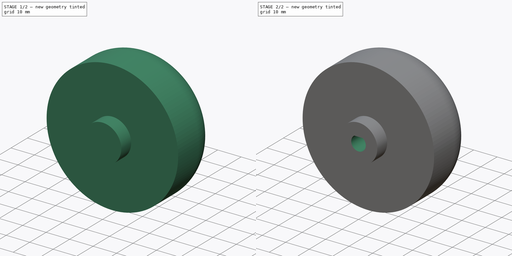
[diagram: build sequence overview — one tinted view per stage of 2, left to right]
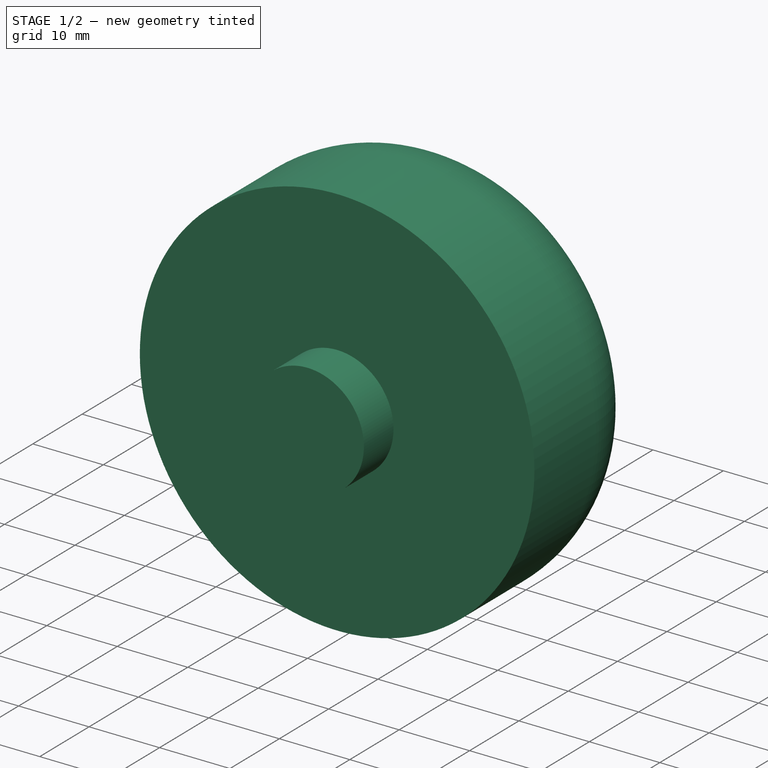
[diagram: stage 1 of 2 — iso view after this stage's code; geometry added in this stage tinted green]
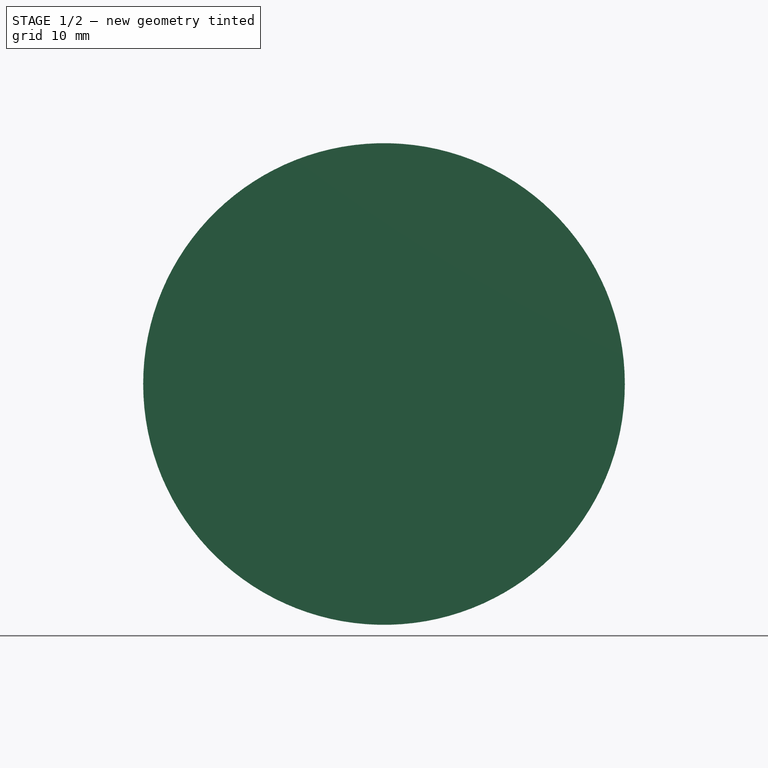
[diagram: stage 1 of 2 — front view after this stage's code; geometry added in this stage tinted green]
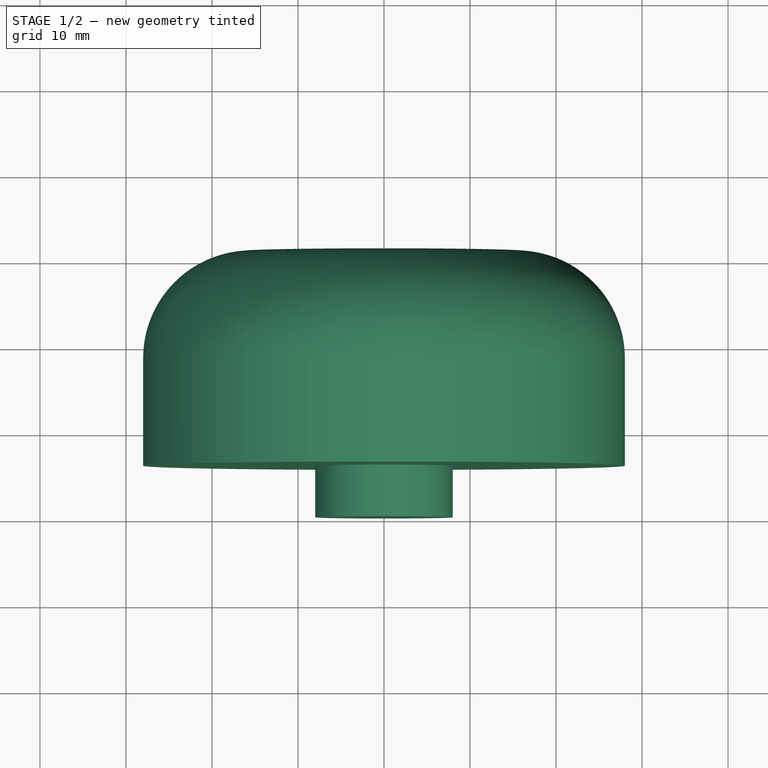
[diagram: stage 1 of 2 — top view after this stage's code; geometry added in this stage tinted green]
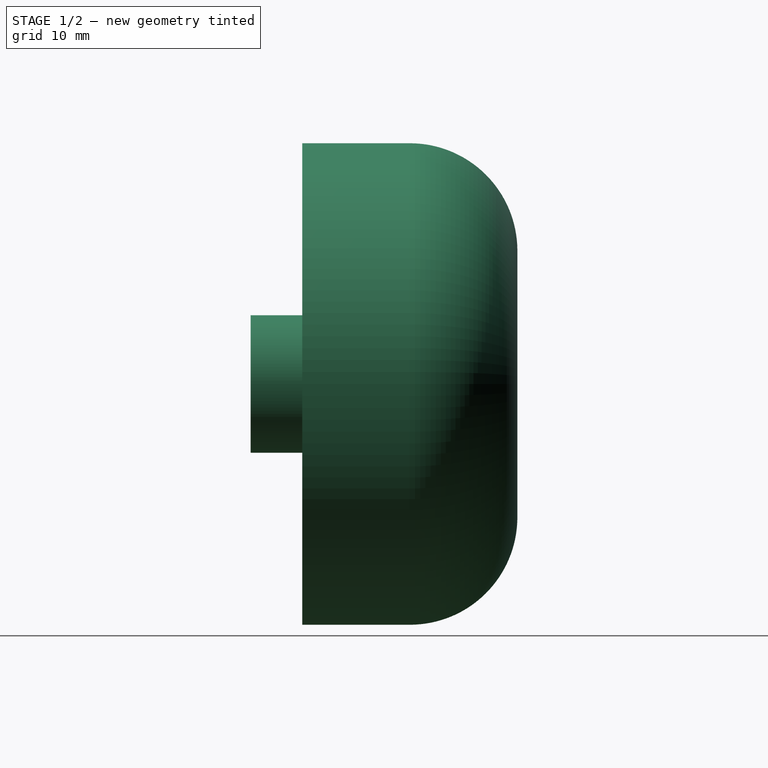
[diagram: stage 1 of 2 — right view after this stage's code; geometry added in this stage tinted green]
FCSTD DOCUMENT  (FreeCAD 0.16R6706 (Git))
Label: Roue
License: All rights reserved
LicenseURL: http://en.wikipedia.org/wiki/All_rights_reserved
objects: Sketcher::SketchObject×2, PartDesign::Revolution×1, PartDesign::Pocket×1
note: 6 computed .brp shape members not serialized (recipe doc carries the construction recipe); baked Part::Feature solids carry a one-line shape summary decoded from their .brp

FEATURE [Sketcher::SketchObject] Sketch
  sketch-geometry (7):
    g0: LineSegment StartX=15 StartY=31 StartZ=0 EndX=0 EndY=31 EndZ=0
    g1: LineSegment StartX=0 StartY=31 StartZ=0 EndX=0 EndY=0 EndZ=0
    g2: LineSegment StartX=8 StartY=0 StartZ=0 EndX=8 EndY=6 EndZ=0
    g3: LineSegment StartX=8 StartY=6 StartZ=0 EndX=28 EndY=6 EndZ=0
    g4: LineSegment StartX=28 StartY=18.5 StartZ=0 EndX=28 EndY=6 EndZ=0
    g5: LineSegment StartX=0 StartY=0 StartZ=0 EndX=8 EndY=0 EndZ=0
    g6: ArcOfCircle CenterX=15.5 CenterY=18.51 CenterZ=0 NormalX=0 NormalY=0 NormalZ=1 Radius=12.5 StartAngle=6.28238 EndAngle=7.89399
  constraints (21):
    c: Coincident(g0,g1)
    c: Horizontal(g0)
    c: Vertical(g1)
    c: Coincident(g2,g3)
    c: Horizontal(g3)
    c: Coincident(g4,g3)
    c: Vertical(g4)
    c: Coincident(g5,g-1)
    c: Coincident(g5,g2)
    c: Parallel(g5,g3)
    c: Parallel(g1,g2)
    c: Coincident(g6,g4)
    c: Radius(g6) = 12.5
    c: DistanceX(g0,g0) = 15
    c: DistanceY(g4,g4) = 12.5
    c: DistanceX(g3,g3) = 20
    c: DistanceY(g2,g2) = 6
    c: DistanceX(g5,g5) = 8
    c: DistanceY(g1,g1) = 31
    c: Coincident(g1,g-1)
    c: Coincident(g6,g0)
FEATURE [PartDesign::Revolution] Revolution
  Angle = 360
  Axis = (0,1,0)
  Base = (0,0,0)
  ReferenceAxis = -> Sketch [V_Axis]
  Reversed = true
  Sketch = -> Sketch
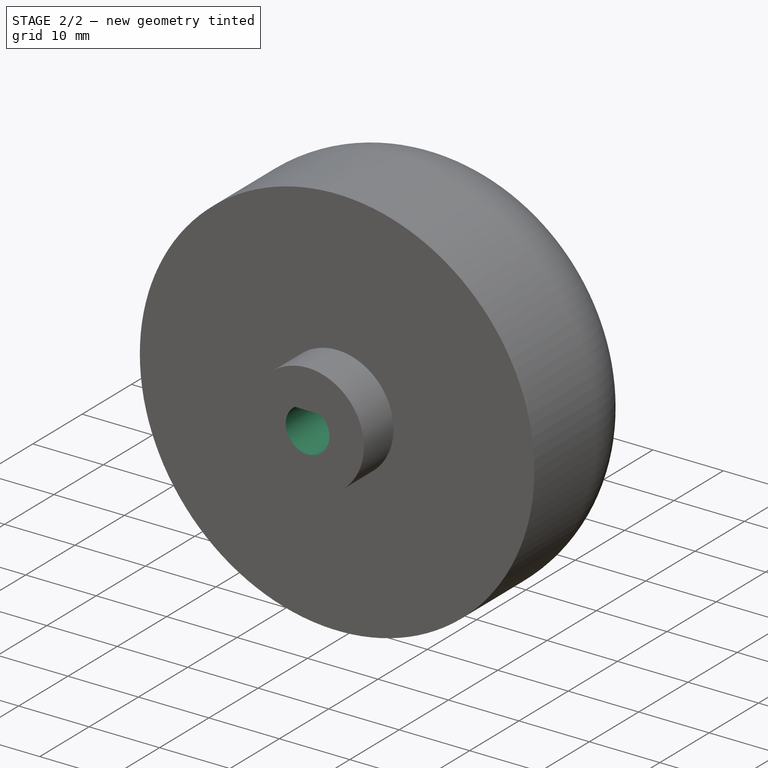
[diagram: stage 2 of 2 — iso view after this stage's code; geometry added in this stage tinted green]
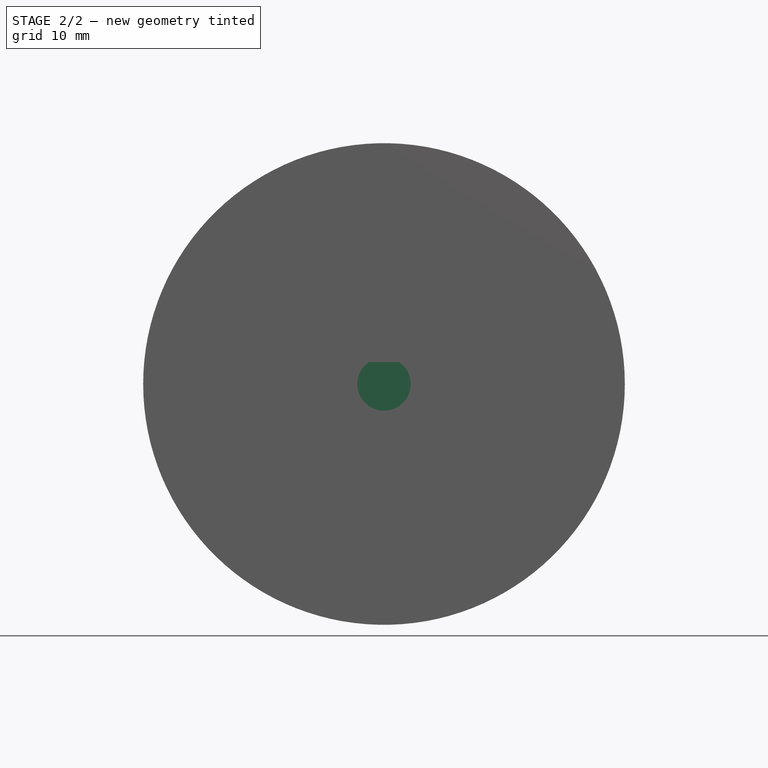
[diagram: stage 2 of 2 — front view after this stage's code; geometry added in this stage tinted green]
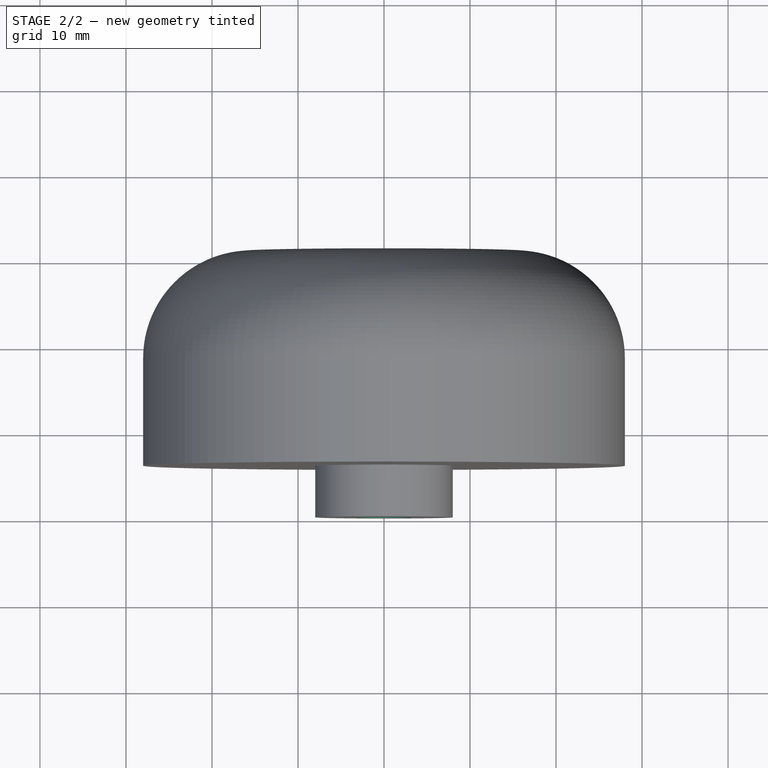
[diagram: stage 2 of 2 — top view after this stage's code; geometry added in this stage tinted green]
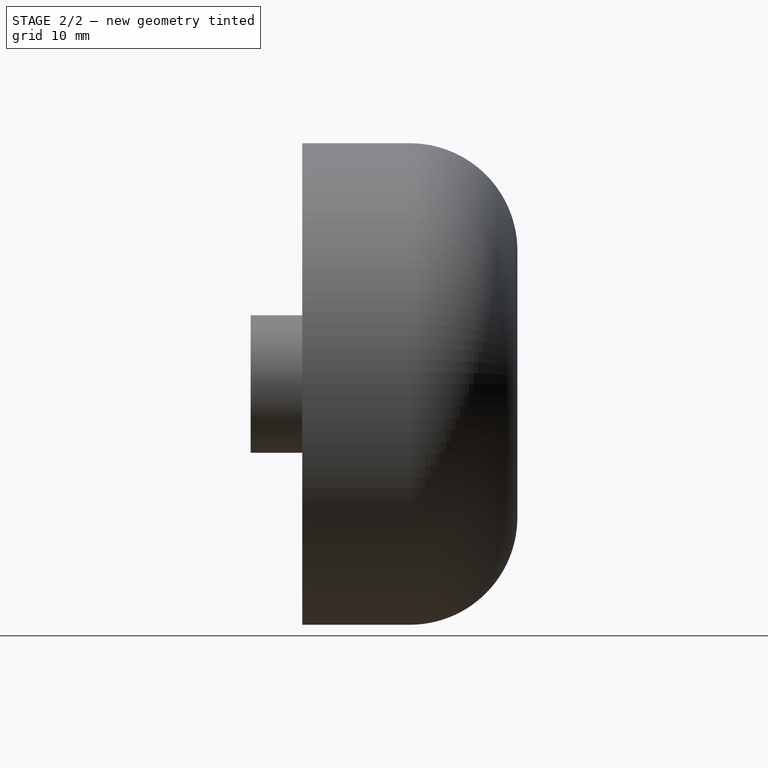
[diagram: stage 2 of 2 — right view after this stage's code; geometry added in this stage tinted green]
FEATURE [Sketcher::SketchObject] Sketch001
  ExternalGeometry = -> [Revolution]
  Placement = pos=(0,0,0) rot=(1,0,0;1.5708rad)
  Support = -> Revolution [Face3]
  sketch-geometry (2):
    g0: LineSegment StartX=-1.8 StartY=2.52389 StartZ=0 EndX=1.8 EndY=2.52389 EndZ=0
    g1: ArcOfCircle CenterX=0 CenterY=0 CenterZ=0 NormalX=0 NormalY=0 NormalZ=1 Radius=3.1 StartAngle=2.19032 EndAngle=7.23446
  constraints (6):
    c: Horizontal(g0)
    c: Coincident(g1,g0)
    c: Coincident(g1,g0)
    c: Coincident(g1,g-1)
    c: DistanceX(g0,g0) = 3.6
    c: Radius(g1) = 3.1
FEATURE [PartDesign::Pocket] Pocket
  Length = 12
  Sketch = -> Sketch001
  Type = 0
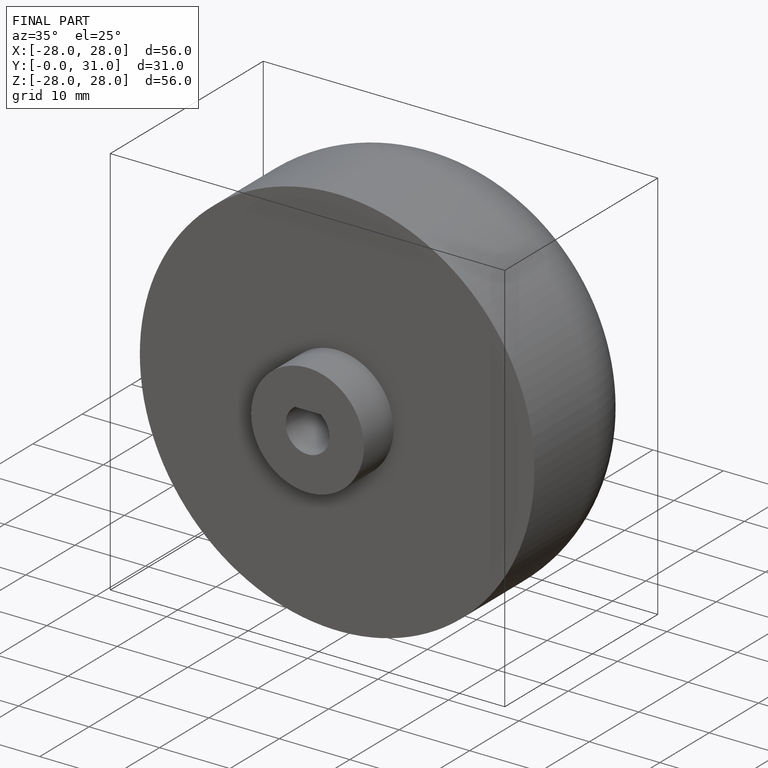
[diagram: finished part — iso view with bounding-box wireframe]
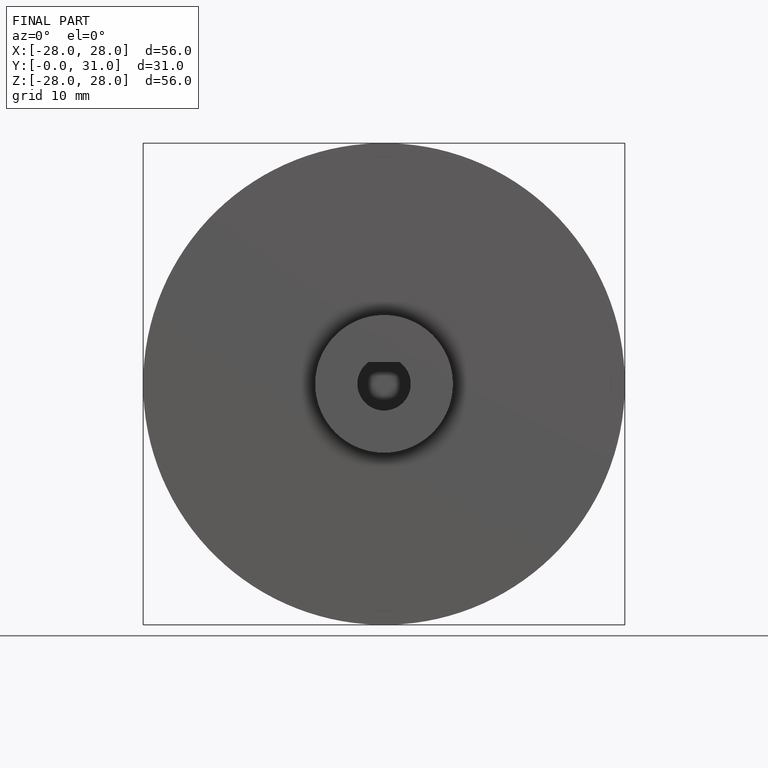
[diagram: finished part — front view with bounding-box wireframe]
